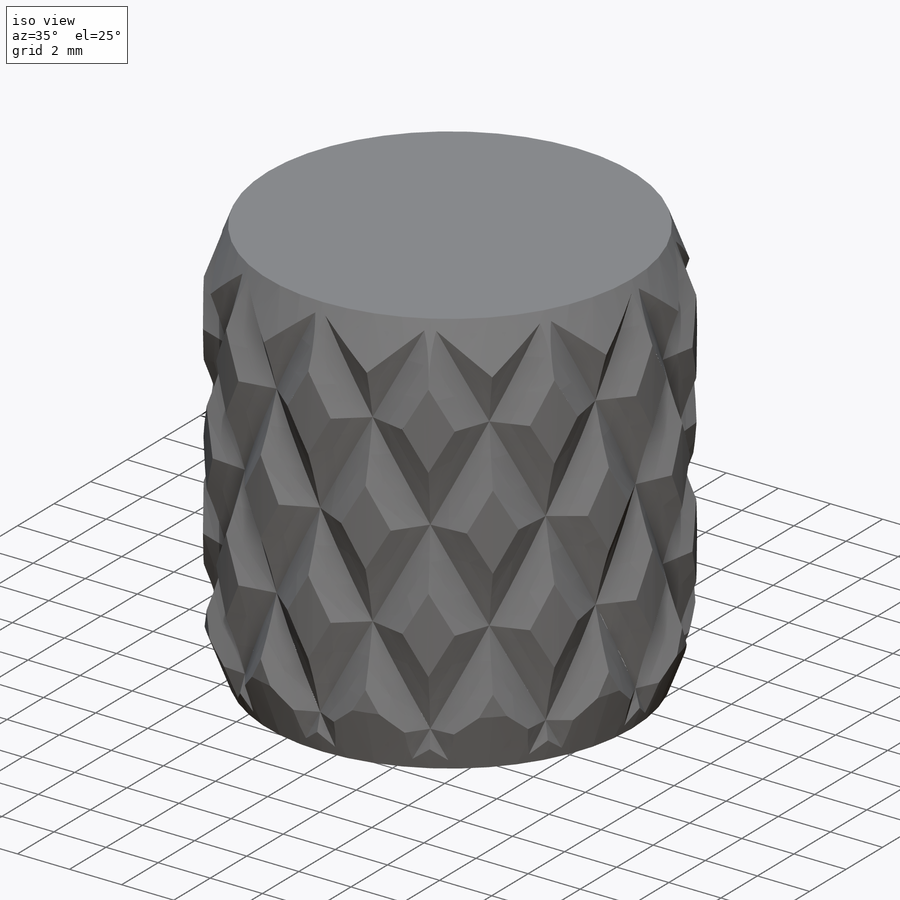
[diagram: iso view]
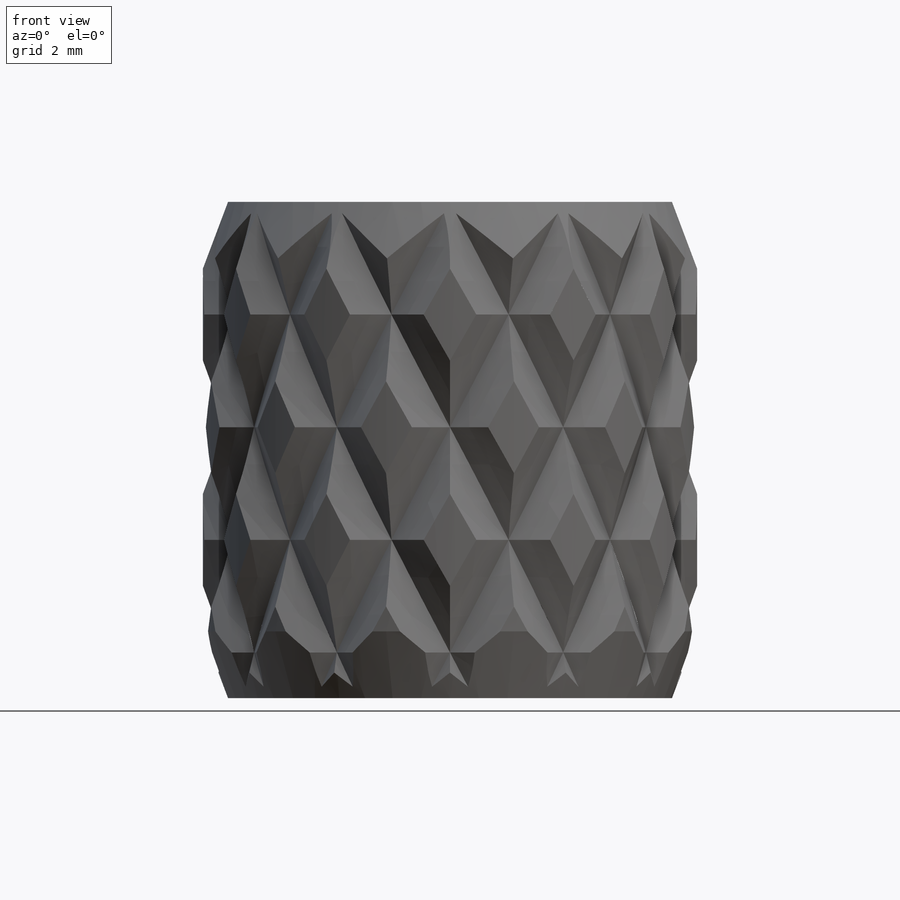
[diagram: front view]
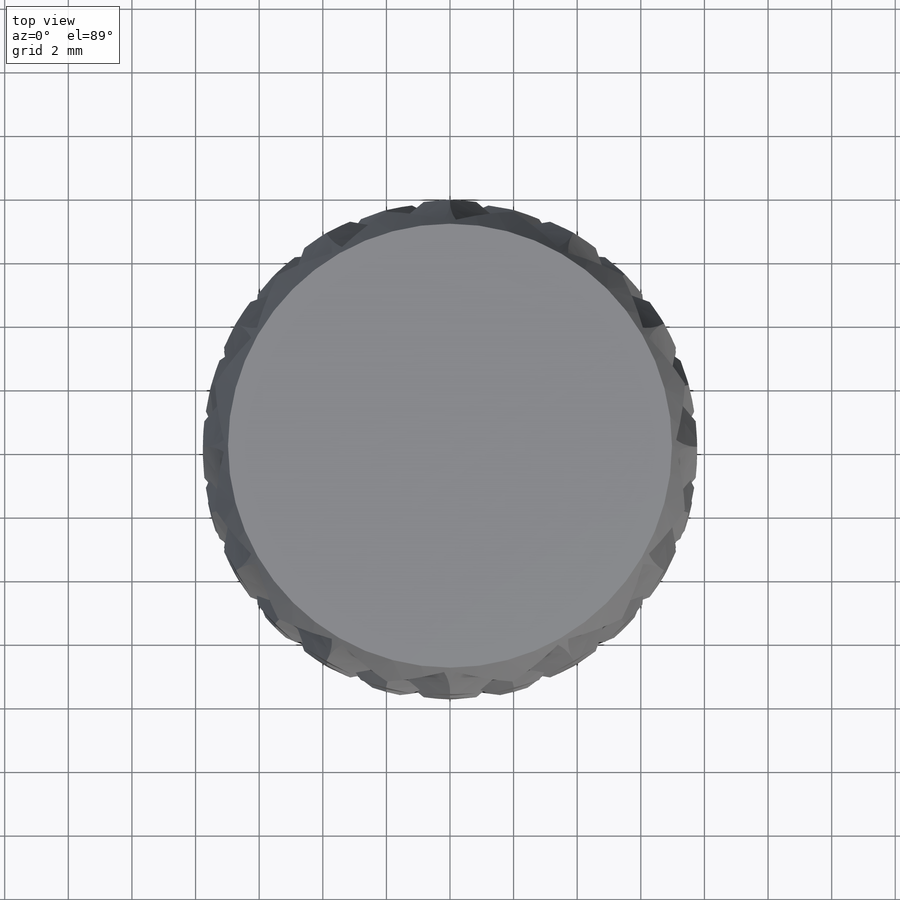
[diagram: top view]
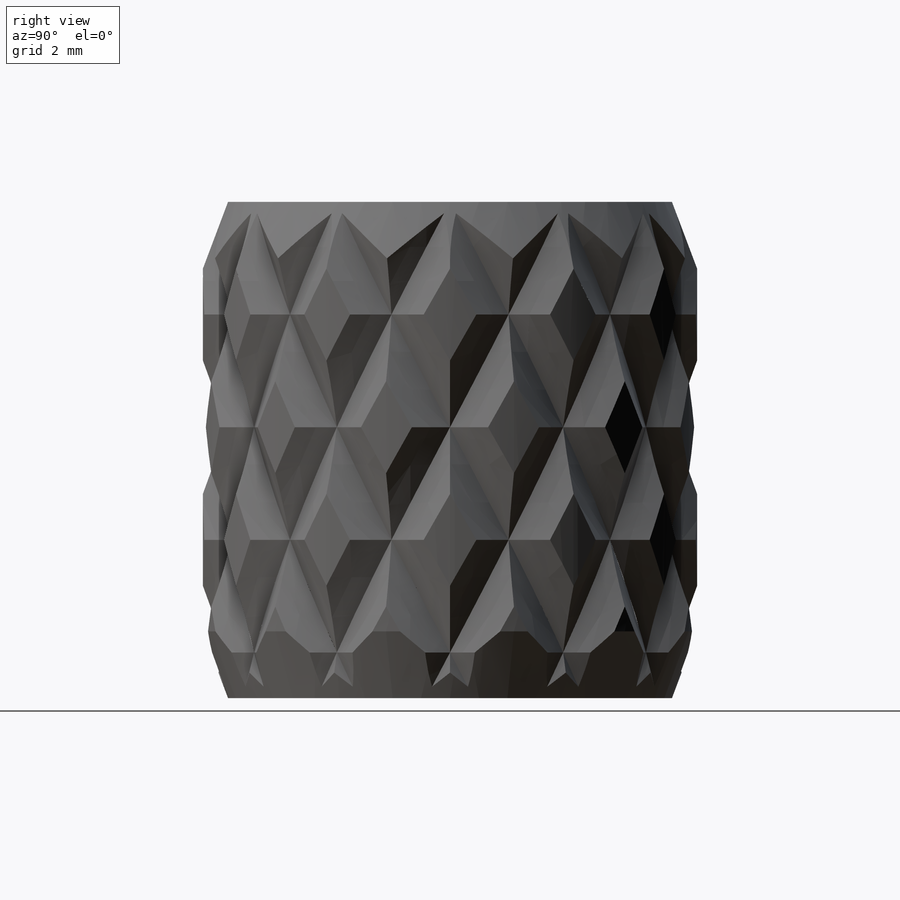
[diagram: right view]
SOLIDWORKS PART (.sldprt)
format: sldprt  version: not decoded by parser v0  size: 896,512 bytes
history: native  units: mm
features: sketch x7, extrude x2, cut_extrude x2, mirror x2, material x1, helix x1, sweep x1, pattern_circular x1, cut_revolve x1, plane x1 (+11 scaffold rows collapsed)
feature tree (30):
  scaffold x11  (default folders/planes/origin — collapsed)
  material  "Material <not specified>"
  sketch  "Sketch1"  dims[D1=2.0mm]
  extrude  "Boss-Extrude1"  Depth=15.6mm
  sketch  "Sketch2"  dims[D1=6.2mm]
  cut_extrude  "Cut-Extrude1"  Depth=13.6mm
  sketch  "Sketch3"
  sketch  "Sketch4"
  helix  "Helix/Spiral1"  Pitch=17mm
  sweep  "Cut-Sweep1"
  pattern_circular  "CirPattern1"  Count=12  [1 undecoded]
  mirror  "Mirror1"
  sketch  "Sketch5"  dims[D1=9.0mm]
  cut_extrude  "Cut-Extrude2"  Depth=5mm
  sketch  "Sketch6"  dims[D1=2.0mm]
  extrude  "Boss-Extrude2"  [1 undecoded]
  sketch  "Sketch9"
  cut_revolve  "Cut-Revolve1"  [1 undecoded]
  plane  "Plane1"
  mirror  "Mirror2"
decode coverage: 9 of 17 modeling features carry decoded parameters
note: 3 parameter values undecoded
note: suppression state not decoded; provenance and decode notes live in map.json
